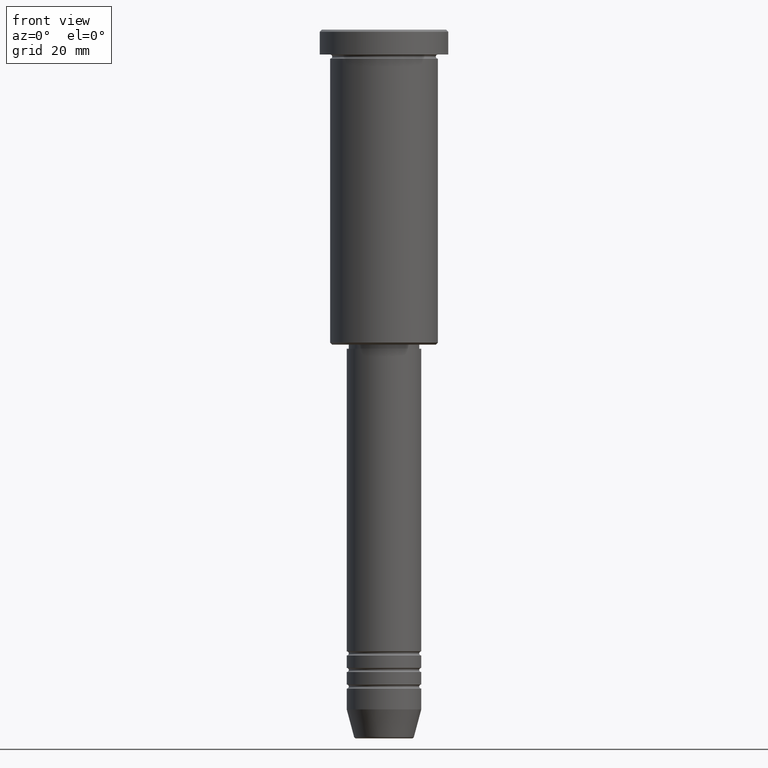
[diagram: clean part render]
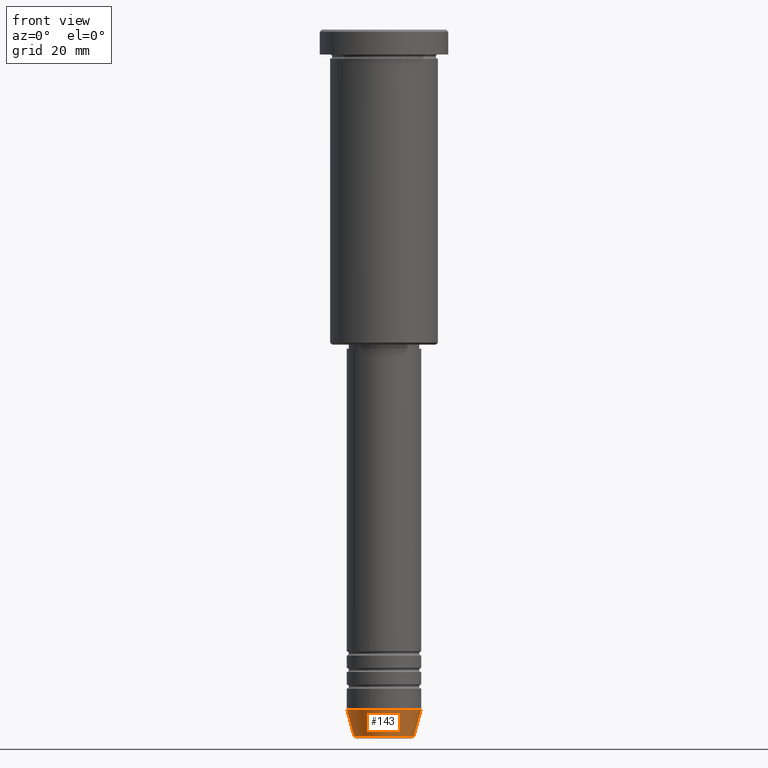
[diagram: same view with one face highlighted and labeled with its STEP entity id]
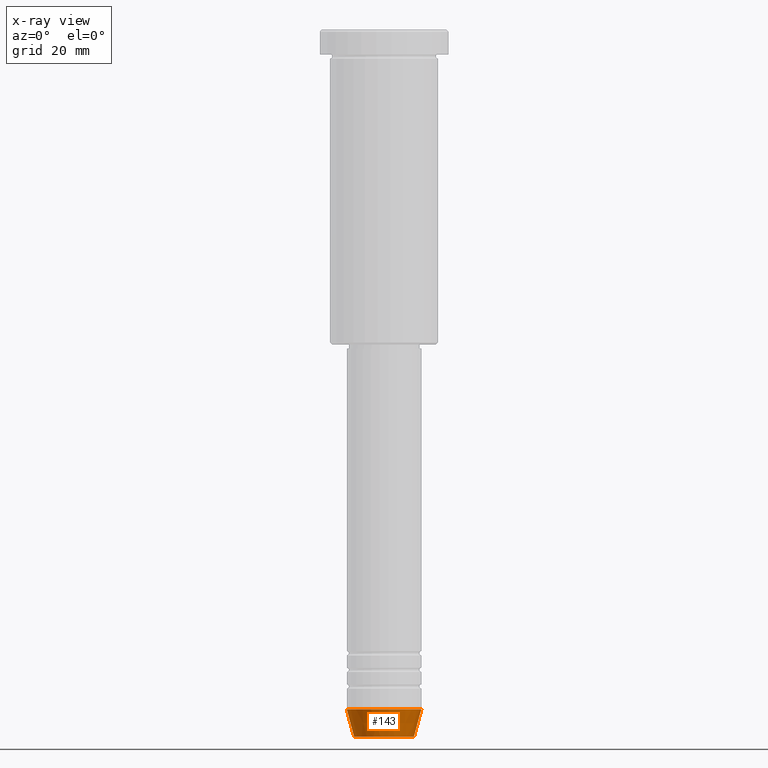
[diagram: x-ray of the same camera — body ghosted, the highlighted face saturated]
A machine part, front view. The second image highlights one B-rep face of the part: STEP entity #143.
The next image is the same camera in x-ray: the body ghosted, the highlighted face saturated — about 0% of this face is hidden behind the body in this view.
In plain terms, the highlighted conical surface has half-angle 15 deg.
Its self-contained STEP definition (entity closure, byte-faithful):
#25 = VECTOR ( 'NONE', #916, 1000.000000000000000 ) ;
#47 = CIRCLE ( 'NONE', #896, 9.000000000000000000 ) ;
#60 = CARTESIAN_POINT ( 'NONE',  ( -7.223655072137189492, 9.934123627281765110E-16, -170.6294095225512706 ) ) ;
#86 = AXIS2_PLACEMENT_3D ( 'NONE', #1172, #266, #622 ) ;
#106 = EDGE_CURVE ( 'NONE', #854, #711, #1061, .T. ) ;
#143 = ADVANCED_FACE ( 'NONE', ( #253 ), #321, .T. ) ;
#166 = CARTESIAN_POINT ( 'NONE',  ( 0.000000000000000000, 0.000000000000000000, -163.9999999999999716 ) ) ;
#187 = CARTESIAN_POINT ( 'NONE',  ( 0.000000000000000000, 0.000000000000000000, -163.9999999999999716 ) ) ;
#188 = CARTESIAN_POINT ( 'NONE',  ( -9.000000000000000000, 1.102182119232617714E-15, -163.9999999999999716 ) ) ;
#222 = VERTEX_POINT ( 'NONE', #560 ) ;
#224 = EDGE_CURVE ( 'NONE', #711, #417, #747, .T. ) ;
#253 = FACE_OUTER_BOUND ( 'NONE', #812, .T. ) ;
#266 = DIRECTION ( 'NONE',  ( -0.000000000000000000, -0.000000000000000000, 1.000000000000000000 ) ) ;
#281 = DIRECTION ( 'NONE',  ( -0.2588190451025213501, 3.169619151431772337E-17, 0.9659258262890680902 ) ) ;
#284 = CARTESIAN_POINT ( 'NONE',  ( 7.223655072137188604, 0.000000000000000000, -170.6294095225512706 ) ) ;
#321 = CONICAL_SURFACE ( 'NONE', #986, 9.000000000000000000, 0.2617993877991500740 ) ;
#417 = VERTEX_POINT ( 'NONE', #942 ) ;
#491 = ORIENTED_EDGE ( 'NONE', *, *, #579, .F. ) ;
#530 = DIRECTION ( 'NONE',  ( 1.000000000000000000, 0.000000000000000000, 0.000000000000000000 ) ) ;
#549 = DIRECTION ( 'NONE',  ( -0.000000000000000000, -0.000000000000000000, 1.000000000000000000 ) ) ;
#559 = ORIENTED_EDGE ( 'NONE', *, *, #106, .T. ) ;
#560 = CARTESIAN_POINT ( 'NONE',  ( -9.000000000000000000, 1.102182119232617714E-15, -163.9999999999999716 ) ) ;
#579 = EDGE_CURVE ( 'NONE', #222, #417, #47, .T. ) ;
#622 = DIRECTION ( 'NONE',  ( 1.000000000000000000, 0.000000000000000000, 0.000000000000000000 ) ) ;
#665 = ORIENTED_EDGE ( 'NONE', *, *, #224, .T. ) ;
#711 = VERTEX_POINT ( 'NONE', #284 ) ;
#738 = LINE ( 'NONE', #188, #1065 ) ;
#747 = LINE ( 'NONE', #1108, #25 ) ;
#812 = EDGE_LOOP ( 'NONE', ( #924, #559, #665, #491 ) ) ;
#854 = VERTEX_POINT ( 'NONE', #60 ) ;
#896 = AXIS2_PLACEMENT_3D ( 'NONE', #166, #975, #530 ) ;
#916 = DIRECTION ( 'NONE',  ( 0.2588190451025213501, 0.000000000000000000, 0.9659258262890680902 ) ) ;
#924 = ORIENTED_EDGE ( 'NONE', *, *, #1070, .F. ) ;
#942 = CARTESIAN_POINT ( 'NONE',  ( 9.000000000000000000, 0.000000000000000000, -163.9999999999999716 ) ) ;
#975 = DIRECTION ( 'NONE',  ( -0.000000000000000000, -0.000000000000000000, 1.000000000000000000 ) ) ;
#979 = DIRECTION ( 'NONE',  ( 1.000000000000000000, 0.000000000000000000, 0.000000000000000000 ) ) ;
#986 = AXIS2_PLACEMENT_3D ( 'NONE', #187, #549, #979 ) ;
#1061 = CIRCLE ( 'NONE', #86, 7.223655072137188604 ) ;
#1065 = VECTOR ( 'NONE', #281, 1000.000000000000000 ) ;
#1070 = EDGE_CURVE ( 'NONE', #854, #222, #738, .T. ) ;
#1108 = CARTESIAN_POINT ( 'NONE',  ( 9.000000000000000000, 0.000000000000000000, -163.9999999999999716 ) ) ;
#1172 = CARTESIAN_POINT ( 'NONE',  ( 0.000000000000000000, 0.000000000000000000, -170.6294095225512706 ) ) ;